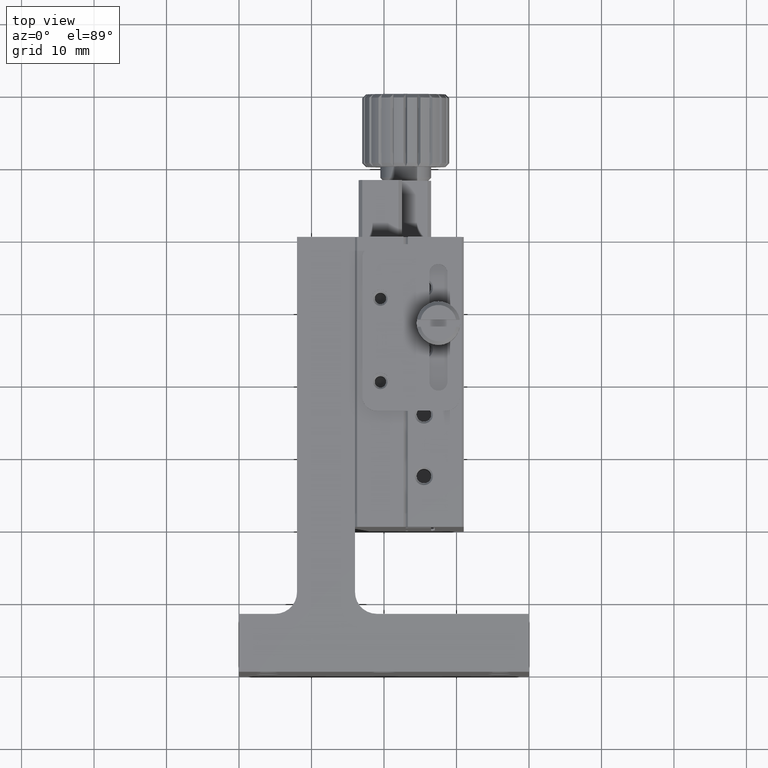
[diagram: clean part render]
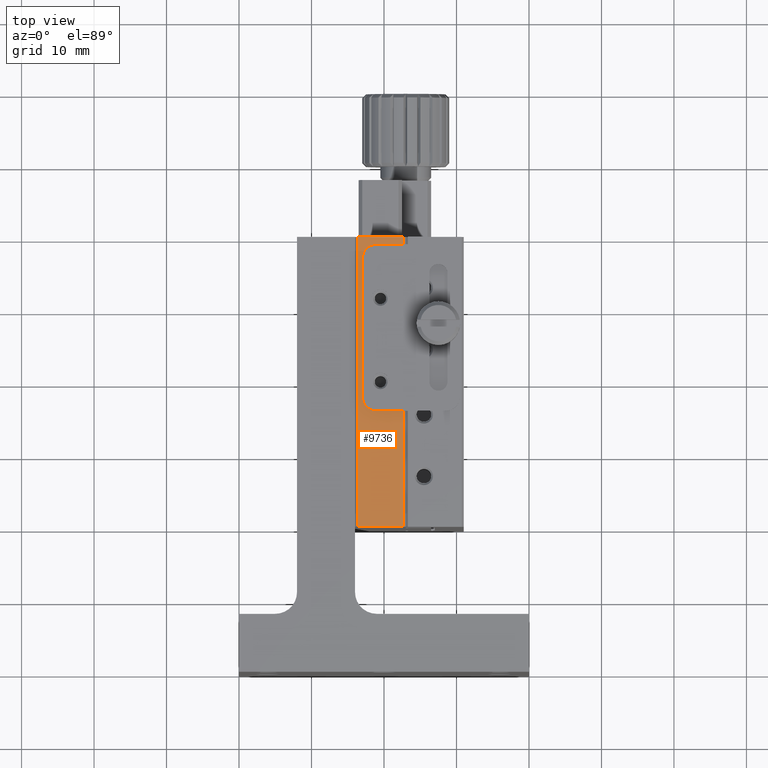
[diagram: same view with one face highlighted and labeled with its STEP entity id]
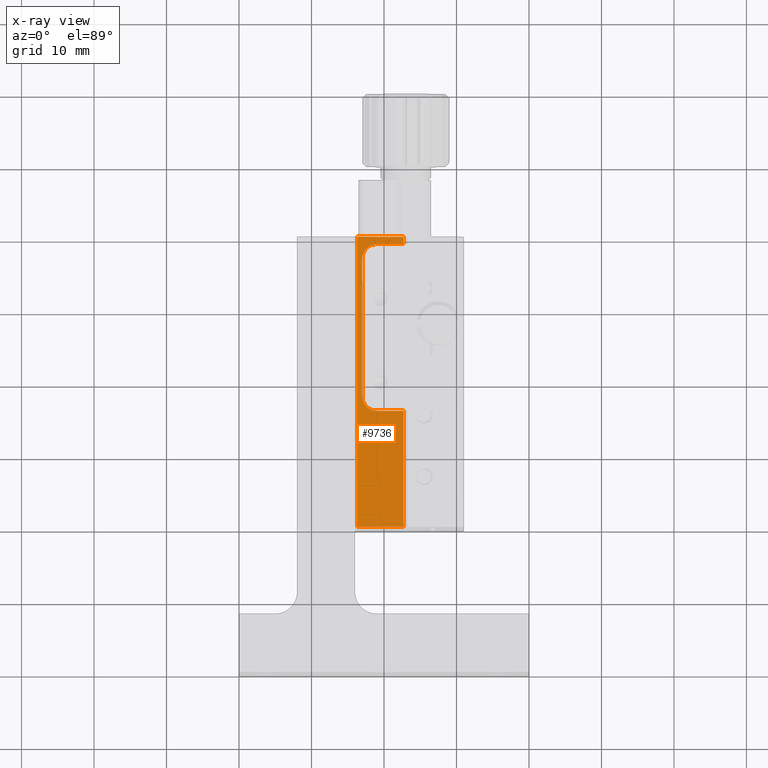
[diagram: x-ray of the same camera — body ghosted, the highlighted face saturated]
A machine part, top view. The second image highlights one B-rep face of the part: STEP entity #9736.
The next image is the same camera in x-ray: the body ghosted, the highlighted face saturated — about 0% of this face is hidden behind the body in this view.
In plain terms, the highlighted planar face has unit normal (0, 0, -1).
Its self-contained STEP definition (entity closure, byte-faithful):
#130 = LINE ( 'NONE', #2006, #10090 ) ;
#170 = VERTEX_POINT ( 'NONE', #6664 ) ;
#171 = CARTESIAN_POINT ( 'NONE',  ( 16.00000000000000000, 60.00000000000000000, 1.910944191179141280E-14 ) ) ;
#299 = DIRECTION ( 'NONE',  ( 0.000000000000000000, 1.000000000000000000, 0.000000000000000000 ) ) ;
#384 = DIRECTION ( 'NONE',  ( -0.000000000000000000, 1.000000000000000000, -0.000000000000000000 ) ) ;
#545 = CARTESIAN_POINT ( 'NONE',  ( 22.70000000000001705, 59.00000000000000000, 1.910944191179141280E-14 ) ) ;
#744 = CARTESIAN_POINT ( 'NONE',  ( 17.00000000000000000, 56.99999999999999289, 1.200206299027993703E-14 ) ) ;
#825 = ORIENTED_EDGE ( 'NONE', *, *, #7275, .F. ) ;
#915 = CARTESIAN_POINT ( 'NONE',  ( 19.00000000000000000, 38.00000000000000000, 4.898587196589409870E-15 ) ) ;
#977 = DIRECTION ( 'NONE',  ( -1.000000000000000000, -0.000000000000000000, -0.000000000000000000 ) ) ;
#1047 = ORIENTED_EDGE ( 'NONE', *, *, #5749, .F. ) ;
#1062 = LINE ( 'NONE', #2537, #5594 ) ;
#1192 = CARTESIAN_POINT ( 'NONE',  ( 17.00000000000000000, 19.99999999999999645, 1.910944191179141280E-14 ) ) ;
#1323 = VECTOR ( 'NONE', #8509, 1000.000000000000000 ) ;
#1328 = LINE ( 'NONE', #545, #2964 ) ;
#1365 = CARTESIAN_POINT ( 'NONE',  ( 22.70000000000001705, 36.00000000000000000, 1.521596349017871783E-14 ) ) ;
#1390 = FACE_OUTER_BOUND ( 'NONE', #3448, .T. ) ;
#1422 = VECTOR ( 'NONE', #5798, 1000.000000000000000 ) ;
#1438 = DIRECTION ( 'NONE',  ( 0.000000000000000000, 0.000000000000000000, -1.000000000000000000 ) ) ;
#1468 = VERTEX_POINT ( 'NONE', #744 ) ;
#1550 = EDGE_CURVE ( 'NONE', #8930, #7404, #1062, .T. ) ;
#1579 = DIRECTION ( 'NONE',  ( -1.000000000000000000, -0.000000000000000000, -0.000000000000000000 ) ) ;
#1582 = VECTOR ( 'NONE', #384, 1000.000000000000000 ) ;
#1747 = DIRECTION ( 'NONE',  ( 0.000000000000000000, 1.000000000000000000, 0.000000000000000000 ) ) ;
#1756 = CARTESIAN_POINT ( 'NONE',  ( 19.00000000000000000, 36.00000000000000000, 1.200206299027993703E-14 ) ) ;
#1974 = LINE ( 'NONE', #7471, #7034 ) ;
#2006 = CARTESIAN_POINT ( 'NONE',  ( 16.00000000000000000, 19.99999999999999645, 1.910944191179141280E-14 ) ) ;
#2028 = PLANE ( 'NONE',  #7048 ) ;
#2135 = ORIENTED_EDGE ( 'NONE', *, *, #7030, .F. ) ;
#2178 = CARTESIAN_POINT ( 'NONE',  ( 22.70000000000001705, 36.00000000000000000, 1.910944191179141280E-14 ) ) ;
#2432 = EDGE_CURVE ( 'NONE', #3600, #7325, #7654, .T. ) ;
#2513 = DIRECTION ( 'NONE',  ( -0.000000000000000000, -0.000000000000000000, 1.000000000000000000 ) ) ;
#2537 = CARTESIAN_POINT ( 'NONE',  ( 22.70000000000001705, 19.99999999999999645, 1.910944191179141280E-14 ) ) ;
#2583 = EDGE_CURVE ( 'NONE', #8336, #9865, #9291, .T. ) ;
#2835 = EDGE_CURVE ( 'NONE', #9865, #4095, #5908, .T. ) ;
#2942 = CARTESIAN_POINT ( 'NONE',  ( 16.30000000000001137, 60.00000000000000000, 1.910944191179141280E-14 ) ) ;
#2964 = VECTOR ( 'NONE', #1579, 1000.000000000000000 ) ;
#3405 = CARTESIAN_POINT ( 'NONE',  ( 19.00000000000000000, 56.99999999999999289, 4.898587196589409870E-15 ) ) ;
#3448 = EDGE_LOOP ( 'NONE', ( #7245, #5755, #6670, #825, #6600, #6439, #8585, #2135, #6885, #1047 ) ) ;
#3600 = VERTEX_POINT ( 'NONE', #7248 ) ;
#3694 = CARTESIAN_POINT ( 'NONE',  ( 22.70000000000001705, 19.99999999999999645, 1.774638294054263662E-14 ) ) ;
#4065 = CARTESIAN_POINT ( 'NONE',  ( 22.70000000000001705, 60.00000000000000000, 1.774638294054263662E-14 ) ) ;
#4095 = VERTEX_POINT ( 'NONE', #2942 ) ;
#4226 = CARTESIAN_POINT ( 'NONE',  ( 16.30000000000001137, 19.99999999999999645, 1.910944191179141280E-14 ) ) ;
#4355 = VECTOR ( 'NONE', #8609, 1000.000000000000000 ) ;
#4447 = LINE ( 'NONE', #1192, #1323 ) ;
#5043 = DIRECTION ( 'NONE',  ( 0.000000000000000000, -1.000000000000000000, 0.000000000000000000 ) ) ;
#5594 = VECTOR ( 'NONE', #9866, 1000.000000000000000 ) ;
#5749 = EDGE_CURVE ( 'NONE', #8336, #170, #1328, .T. ) ;
#5755 = ORIENTED_EDGE ( 'NONE', *, *, #2835, .T. ) ;
#5798 = DIRECTION ( 'NONE',  ( -1.000000000000000000, -0.000000000000000000, -0.000000000000000000 ) ) ;
#5861 = AXIS2_PLACEMENT_3D ( 'NONE', #3405, #2513, #299 ) ;
#5867 = CARTESIAN_POINT ( 'NONE',  ( 22.70000000000001705, 59.00000000000000000, 1.842596086225655396E-14 ) ) ;
#5908 = LINE ( 'NONE', #171, #1422 ) ;
#6090 = CARTESIAN_POINT ( 'NONE',  ( 22.70000000000001705, 19.99999999999999645, 1.910944191179141280E-14 ) ) ;
#6439 = ORIENTED_EDGE ( 'NONE', *, *, #7179, .F. ) ;
#6600 = ORIENTED_EDGE ( 'NONE', *, *, #1550, .F. ) ;
#6664 = CARTESIAN_POINT ( 'NONE',  ( 19.00000000000000000, 59.00000000000000000, 1.200206299027993703E-14 ) ) ;
#6670 = ORIENTED_EDGE ( 'NONE', *, *, #9525, .T. ) ;
#6708 = DIRECTION ( 'NONE',  ( -0.000000000000000000, -0.000000000000000000, 1.000000000000000000 ) ) ;
#6768 = EDGE_CURVE ( 'NONE', #170, #1468, #9398, .T. ) ;
#6885 = ORIENTED_EDGE ( 'NONE', *, *, #6768, .F. ) ;
#7030 = EDGE_CURVE ( 'NONE', #1468, #3600, #4447, .T. ) ;
#7034 = VECTOR ( 'NONE', #5043, 1000.000000000000000 ) ;
#7048 = AXIS2_PLACEMENT_3D ( 'NONE', #6090, #1438, #9309 ) ;
#7179 = EDGE_CURVE ( 'NONE', #7325, #8930, #7933, .T. ) ;
#7245 = ORIENTED_EDGE ( 'NONE', *, *, #2583, .T. ) ;
#7248 = CARTESIAN_POINT ( 'NONE',  ( 17.00000000000000000, 38.00000000000000000, 1.200206299027993703E-14 ) ) ;
#7275 = EDGE_CURVE ( 'NONE', #7404, #8326, #130, .T. ) ;
#7325 = VERTEX_POINT ( 'NONE', #1756 ) ;
#7404 = VERTEX_POINT ( 'NONE', #9487 ) ;
#7471 = CARTESIAN_POINT ( 'NONE',  ( 16.30000000000001137, 19.99999999999999645, 1.910944191179141280E-14 ) ) ;
#7654 = CIRCLE ( 'NONE', #9663, 2.000000000000001776 ) ;
#7933 = LINE ( 'NONE', #2178, #4355 ) ;
#8326 = VERTEX_POINT ( 'NONE', #4226 ) ;
#8336 = VERTEX_POINT ( 'NONE', #5867 ) ;
#8509 = DIRECTION ( 'NONE',  ( -0.000000000000000000, -1.000000000000000000, -0.000000000000000000 ) ) ;
#8585 = ORIENTED_EDGE ( 'NONE', *, *, #2432, .F. ) ;
#8609 = DIRECTION ( 'NONE',  ( 1.000000000000000000, 0.000000000000000000, 0.000000000000000000 ) ) ;
#8930 = VERTEX_POINT ( 'NONE', #1365 ) ;
#9291 = LINE ( 'NONE', #3694, #1582 ) ;
#9309 = DIRECTION ( 'NONE',  ( 0.000000000000000000, 1.000000000000000000, 0.000000000000000000 ) ) ;
#9398 = CIRCLE ( 'NONE', #5861, 2.000000000000001776 ) ;
#9487 = CARTESIAN_POINT ( 'NONE',  ( 22.70000000000001705, 19.99999999999999645, 1.835239774485340617E-14 ) ) ;
#9525 = EDGE_CURVE ( 'NONE', #4095, #8326, #1974, .T. ) ;
#9663 = AXIS2_PLACEMENT_3D ( 'NONE', #915, #6708, #1747 ) ;
#9736 = ADVANCED_FACE ( 'NONE', ( #1390 ), #2028, .F. ) ;
#9865 = VERTEX_POINT ( 'NONE', #4065 ) ;
#9866 = DIRECTION ( 'NONE',  ( -0.000000000000000000, -1.000000000000000000, -0.000000000000000000 ) ) ;
#10090 = VECTOR ( 'NONE', #977, 1000.000000000000000 ) ;